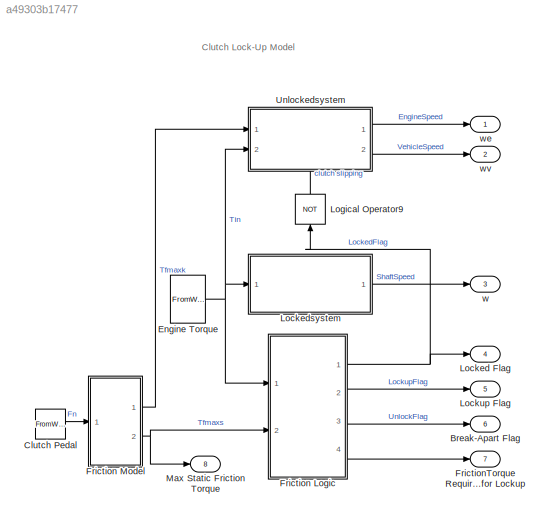
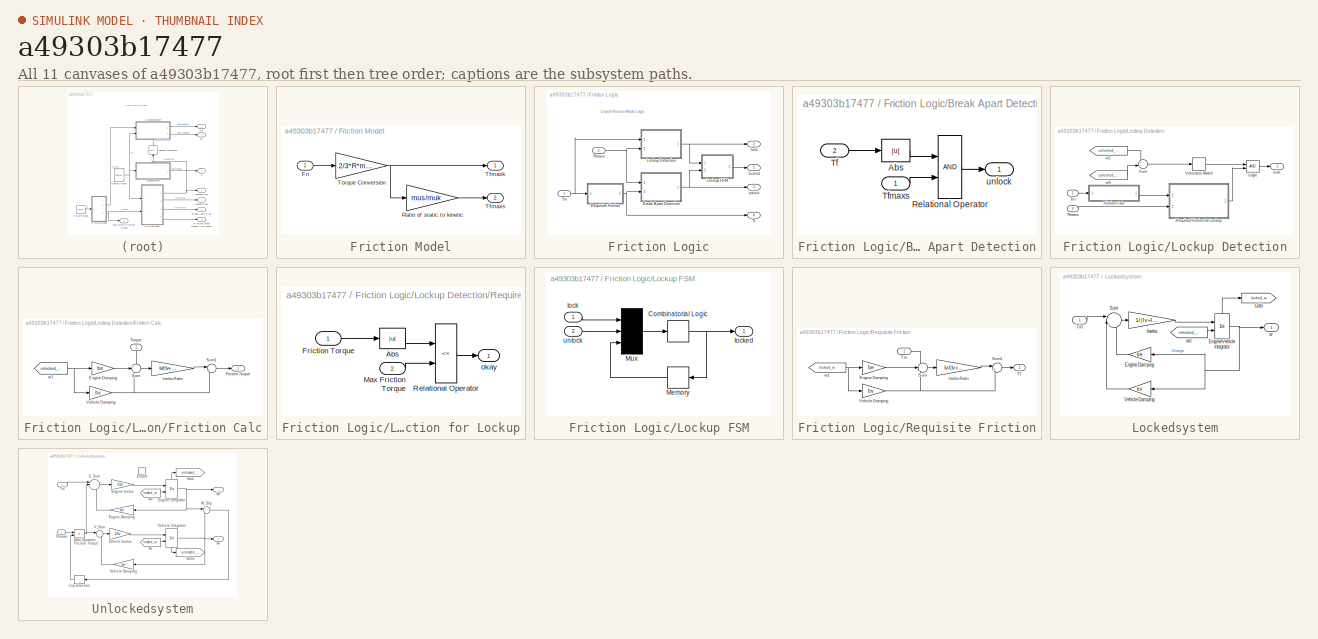
[diagram: thumbnail index - all 11 canvases of the model, root first then tree order]
MODEL slx_a49303b17477
KIND model
CONFIG AbsTol = auto
CONFIG EnableMultiTasking = off
CONFIG FixedStep = auto
CONFIG MaxStep = auto
CONFIG MinStep = auto
CONFIG RelTol = 1e-3
CONFIG SampleTimeConstraint = Unconstrained
CONFIG SolverName = VariableStepAuto
CONFIG StartTime = 0.0
CONFIG StopTime = 10.0
BLOCK [Outport] Break-Apart Flag
  InitialOutput = 0
  Port = 6
  VectorParamsAs1DForOutWhenUnconnected = off
BLOCK [FromWorkspace] Clutch Pedal
  VariableName = Fn
  ZeroCross = off
BLOCK [FromWorkspace] Engine Torque
  VariableName = Tin
  ZeroCross = off
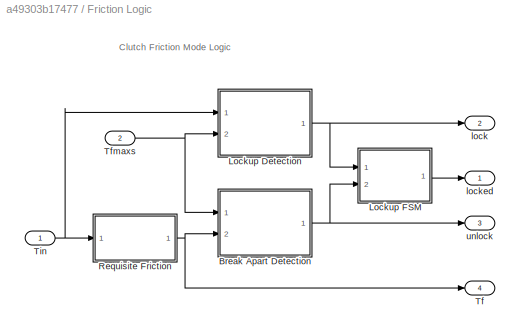
BLOCK [SubSystem] Friction Logic
  Ports = [2, 4]
  RequestExecContextInheritance = off
BLOCK [SubSystem] Friction Logic/Break Apart Detection
  Ports = [2, 1]
  RequestExecContextInheritance = off
BLOCK [Abs] Friction Logic/Break Apart Detection/Abs
BLOCK [RelationalOperator] Friction Logic/Break Apart Detection/Relational Operator
  OutDataTypeStr = boolean
  Ports = [2, 1]
BLOCK [Inport] Friction Logic/Break Apart Detection/Tf
  Port = 2
BLOCK [Inport] Friction Logic/Break Apart Detection/Tfmaxs
BLOCK [Outport] Friction Logic/Break Apart Detection/unlock
  InitialOutput = 0
  VectorParamsAs1DForOutWhenUnconnected = off
BLOCK [SubSystem] Friction Logic/Lockup Detection
  Ports = [2, 1]
  RequestExecContextInheritance = off
BLOCK [SubSystem] Friction Logic/Lockup Detection/Friction Calc
  Ports = [1, 1]
  RequestExecContextInheritance = off
BLOCK [Gain] Friction Logic/Lockup Detection/Friction Calc/Engine Damping
  Gain = be
  NameLocation = top
  OutDataTypeStr = Inherit: Same as input
  ParamDataTypeStr = Inherit: Same as input
  SaturateOnIntegerOverflow = on
BLOCK [Outport] Friction Logic/Lockup Detection/Friction Calc/Friction Torque
  InitialOutput = 0
  VectorParamsAs1DForOutWhenUnconnected = off
BLOCK [Gain] Friction Logic/Lockup Detection/Friction Calc/Inertia Ratio
  Gain = Iv/(Iv+Ie)
  OutDataTypeStr = Inherit: Same as input
  ParamDataTypeStr = Inherit: Same as input
  SaturateOnIntegerOverflow = on
BLOCK [Sum] Friction Logic/Lockup Detection/Friction Calc/Sum
  InputSameDT = on
  Inputs = +--
  OutDataTypeStr = Inherit: Same as first input
  Ports = [3, 1]
  SaturateOnIntegerOverflow = on
BLOCK [Sum] Friction Logic/Lockup Detection/Friction Calc/Sum1
  InputSameDT = on
  Inputs = |++
  OutDataTypeStr = Inherit: Same as first input
  Ports = [2, 1]
  SaturateOnIntegerOverflow = on
BLOCK [Inport] Friction Logic/Lockup Detection/Friction Calc/Torque
  NameLocation = left
BLOCK [Gain] Friction Logic/Lockup Detection/Friction Calc/Vehicle Damping
  Gain = bv
  OutDataTypeStr = Inherit: Same as input
  ParamDataTypeStr = Inherit: Same as input
  SaturateOnIntegerOverflow = on
BLOCK [From] Friction Logic/Lockup Detection/Friction Calc/w1
  GotoTag = unlocked_we
  TagVisibility = global
BLOCK [Logic] Friction Logic/Lockup Detection/Logic
  AttributesFormatString = (%<Operator>)
  IconShape = distinctive
  OutDataTypeStr = boolean
  Ports = [2, 1]
BLOCK [SubSystem] Friction Logic/Lockup Detection/Required Friction for Lockup
  Ports = [2, 1]
  RequestExecContextInheritance = off
BLOCK [Abs] Friction Logic/Lockup Detection/Required Friction for Lockup/Abs
BLOCK [Inport] Friction Logic/Lockup Detection/Required Friction for Lockup/Friction Torque
BLOCK [Inport] Friction Logic/Lockup Detection/Required Friction for Lockup/Max Friction Torque
  Port = 2
BLOCK [RelationalOperator] Friction Logic/Lockup Detection/Required Friction for Lockup/Relational Operator
  Operator = <=
  OutDataTypeStr = boolean
  Ports = [2, 1]
BLOCK [Outport] Friction Logic/Lockup Detection/Required Friction for Lockup/okay
  InitialOutput = 0
  VectorParamsAs1DForOutWhenUnconnected = off
BLOCK [Sum] Friction Logic/Lockup Detection/Sum
  InputSameDT = on
  Inputs = +-
  OutDataTypeStr = Inherit: Same as first input
  Ports = [2, 1]
  SaturateOnIntegerOverflow = on
BLOCK [Inport] Friction Logic/Lockup Detection/Tfmaxs
  Port = 2
BLOCK [Inport] Friction Logic/Lockup Detection/Tin
BLOCK [HitCross] Friction Logic/Lockup Detection/Velocities Match
  Ports = [1, 1]
BLOCK [Outport] Friction Logic/Lockup Detection/lock
  InitialOutput = 0
  VectorParamsAs1DForOutWhenUnconnected = off
BLOCK [From] Friction Logic/Lockup Detection/w1
  GotoTag = unlocked_we
  TagVisibility = global
BLOCK [From] Friction Logic/Lockup Detection/w6
  GotoTag = unlocked_wv
  TagVisibility = global
BLOCK [SubSystem] Friction Logic/Lockup FSM
  Ports = [2, 1]
  RequestExecContextInheritance = off
BLOCK [CombinatorialLogic] Friction Logic/Lockup FSM/Combinatorial Logic
  TruthTable = [0;1;0;0;1;1;1;0]
BLOCK [Memory] Friction Logic/Lockup FSM/Memory
BLOCK [Mux] Friction Logic/Lockup FSM/Mux
  Inputs = 3
  Ports = [3, 1]
BLOCK [Inport] Friction Logic/Lockup FSM/lock
  NameLocation = top
BLOCK [Outport] Friction Logic/Lockup FSM/locked
  InitialOutput = 0
  VectorParamsAs1DForOutWhenUnconnected = off
BLOCK [Inport] Friction Logic/Lockup FSM/unlock
  Port = 2
BLOCK [SubSystem] Friction Logic/Requisite Friction
  Ports = [1, 1]
  RequestExecContextInheritance = off
BLOCK [Gain] Friction Logic/Requisite Friction/Engine Damping
  Gain = be
  NameLocation = top
  OutDataTypeStr = Inherit: Same as input
  ParamDataTypeStr = Inherit: Same as input
  SaturateOnIntegerOverflow = on
BLOCK [Gain] Friction Logic/Requisite Friction/Inertia Ratio
  Gain = Iv/(Iv+Ie)
  OutDataTypeStr = Inherit: Same as input
  ParamDataTypeStr = Inherit: Same as input
  SaturateOnIntegerOverflow = on
BLOCK [Sum] Friction Logic/Requisite Friction/Sum
  InputSameDT = on
  Inputs = +--
  OutDataTypeStr = Inherit: Same as first input
  Ports = [3, 1]
  SaturateOnIntegerOverflow = on
BLOCK [Sum] Friction Logic/Requisite Friction/Sum1
  InputSameDT = on
  Inputs = |++
  OutDataTypeStr = Inherit: Same as first input
  Ports = [2, 1]
  SaturateOnIntegerOverflow = on
BLOCK [Outport] Friction Logic/Requisite Friction/Tf
  InitialOutput = 0
  VectorParamsAs1DForOutWhenUnconnected = off
BLOCK [Inport] Friction Logic/Requisite Friction/Tin
BLOCK [Gain] Friction Logic/Requisite Friction/Vehicle Damping
  Gain = bv
  OutDataTypeStr = Inherit: Same as input
  ParamDataTypeStr = Inherit: Same as input
  SaturateOnIntegerOverflow = on
BLOCK [From] Friction Logic/Requisite Friction/w1
  GotoTag = locked_w
  NameLocation = top
  TagVisibility = global
BLOCK [Outport] Friction Logic/Tf
  InitialOutput = 0
  Port = 4
  VectorParamsAs1DForOutWhenUnconnected = off
BLOCK [Inport] Friction Logic/Tfmaxs
  Port = 2
BLOCK [Inport] Friction Logic/Tin
BLOCK [Outport] Friction Logic/lock
  InitialOutput = 0
  Port = 2
  VectorParamsAs1DForOutWhenUnconnected = off
BLOCK [Outport] Friction Logic/locked
  InitialOutput = 0
  VectorParamsAs1DForOutWhenUnconnected = off
BLOCK [Outport] Friction Logic/unlock
  InitialOutput = 0
  Port = 3
  VectorParamsAs1DForOutWhenUnconnected = off
BLOCK [SubSystem] Friction Model
  Ports = [1, 2]
  RequestExecContextInheritance = off
BLOCK [Inport] Friction Model/Fn
BLOCK [Gain] Friction Model/Ratio of static to kinetic
  Gain = mus/muk
  OutDataTypeStr = Inherit: Same as input
  ParamDataTypeStr = Inherit: Same as input
  SaturateOnIntegerOverflow = on
BLOCK [Outport] Friction Model/Tfmaxk
  InitialOutput = 0
  VectorParamsAs1DForOutWhenUnconnected = off
BLOCK [Outport] Friction Model/Tfmaxs
  InitialOutput = 0
  Port = 2
  VectorParamsAs1DForOutWhenUnconnected = off
BLOCK [Gain] Friction Model/Torque Conversion
  Gain = 2/3*R*muk
  OutDataTypeStr = Inherit: Same as input
  ParamDataTypeStr = Inherit: Same as input
  SaturateOnIntegerOverflow = on
BLOCK [Outport] FrictionTorque Required for Lockup
  InitialOutput = 0
  Port = 7
  VectorParamsAs1DForOutWhenUnconnected = off
BLOCK [Outport] Locked Flag
  InitialOutput = 0
  Port = 4
  VectorParamsAs1DForOutWhenUnconnected = off
BLOCK [SubSystem] Lockedsystem
  Ports = [1, 1]
  RequestExecContextInheritance = off
  TreatAsAtomicUnit = on
BLOCK [Gain] Lockedsystem/Engine Damping
  Gain = be
  OutDataTypeStr = Inherit: Same as input
  ParamDataTypeStr = Inherit: Same as input
  SaturateOnIntegerOverflow = on
BLOCK [Integrator] Lockedsystem/Engine//Vehicle Integrator
  InitialConditionSource = external
  Ports = [2, 1, 0, 0, 1]
  ShowStatePort = on
BLOCK [Goto] Lockedsystem/Goto
  GotoTag = locked_w
  NameLocation = top
  TagVisibility = global
BLOCK [Gain] Lockedsystem/Inertia
  Gain = 1/(Iv+Ie)
  OutDataTypeStr = Inherit: Same as input
  ParamDataTypeStr = Inherit: Same as input
  SaturateOnIntegerOverflow = on
BLOCK [Sum] Lockedsystem/Sum
  InputSameDT = on
  Inputs = ||+--
  OutDataTypeStr = Inherit: Same as first input
  Ports = [3, 1]
  SaturateOnIntegerOverflow = on
BLOCK [Inport] Lockedsystem/Tin
BLOCK [Gain] Lockedsystem/Vehicle Damping
  Gain = bv
  OutDataTypeStr = Inherit: Same as input
  ParamDataTypeStr = Inherit: Same as input
  SaturateOnIntegerOverflow = on
BLOCK [Outport] Lockedsystem/w
  InitialOutput = 0
  VectorParamsAs1DForOutWhenUnconnected = off
BLOCK [From] Lockedsystem/w0
  GotoTag = unlocked_we
  TagVisibility = global
BLOCK [Outport] Lockup Flag
  InitialOutput = 0
  Port = 5
  VectorParamsAs1DForOutWhenUnconnected = off
BLOCK [Logic] Logical Operator9
  IconShape = distinctive
  Inputs = 1
  NameLocation = left
  Operator = NOT
  OutDataTypeStr = boolean
  Ports = [1, 1]
BLOCK [Outport] Max Static Friction Torque
  InitialOutput = 0
  Port = 8
  VectorParamsAs1DForOutWhenUnconnected = off
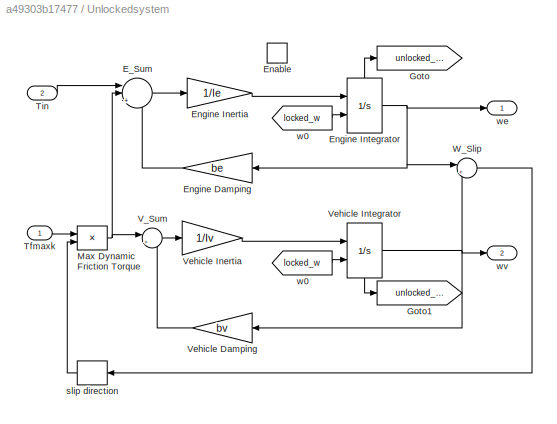
BLOCK [SubSystem] Unlockedsystem
  NameLocation = top
  Ports = [2, 2, 1]
  RequestExecContextInheritance = off
  TreatAsAtomicUnit = on
BLOCK [Sum] Unlockedsystem/E_Sum
  InputSameDT = on
  Inputs = ||+--
  NameLocation = top
  OutDataTypeStr = Inherit: Same as first input
  Ports = [3, 1]
  SaturateOnIntegerOverflow = on
BLOCK [EnablePort] Unlockedsystem/Enable
  Ports = []
  StatesWhenEnabling = reset
BLOCK [Gain] Unlockedsystem/Engine Damping
  Gain = be
  OutDataTypeStr = Inherit: Same as input
  ParamDataTypeStr = Inherit: Same as input
  SaturateOnIntegerOverflow = on
BLOCK [Gain] Unlockedsystem/Engine Inertia
  Gain = 1/Ie
  OutDataTypeStr = Inherit: Same as input
  ParamDataTypeStr = Inherit: Same as input
  SaturateOnIntegerOverflow = on
BLOCK [Integrator] Unlockedsystem/Engine Integrator
  InitialConditionSource = external
  Ports = [2, 1, 0, 0, 1]
  ShowStatePort = on
BLOCK [Goto] Unlockedsystem/Goto
  GotoTag = unlocked_we
  TagVisibility = global
BLOCK [Goto] Unlockedsystem/Goto1
  GotoTag = unlocked_wv
  TagVisibility = global
BLOCK [Product] Unlockedsystem/Max Dynamic Friction Torque
  InputSameDT = on
  OutDataTypeStr = Inherit: Same as first input
  Ports = [2, 1]
  RndMeth = Zero
  SaturateOnIntegerOverflow = on
BLOCK [Inport] Unlockedsystem/Tfmaxk
BLOCK [Inport] Unlockedsystem/Tin
  Port = 2
BLOCK [Sum] Unlockedsystem/V_Sum
  InputSameDT = on
  Inputs = |+-
  NameLocation = top
  OutDataTypeStr = Inherit: Same as first input
  Ports = [2, 1]
  SaturateOnIntegerOverflow = on
BLOCK [Gain] Unlockedsystem/Vehicle Damping
  Gain = bv
  OutDataTypeStr = Inherit: Same as input
  ParamDataTypeStr = Inherit: Same as input
  SaturateOnIntegerOverflow = on
BLOCK [Gain] Unlockedsystem/Vehicle Inertia
  Gain = 1/Iv
  OutDataTypeStr = Inherit: Same as input
  ParamDataTypeStr = Inherit: Same as input
  SaturateOnIntegerOverflow = on
BLOCK [Integrator] Unlockedsystem/Vehicle Integrator
  InitialConditionSource = external
  NameLocation = top
  Ports = [2, 1, 0, 0, 1]
  ShowStatePort = on
BLOCK [Sum] Unlockedsystem/W_Slip
  InputSameDT = on
  Inputs = |+-
  NameLocation = top
  OutDataTypeStr = Inherit: Same as first input
  Ports = [2, 1]
  SaturateOnIntegerOverflow = on
BLOCK [Signum] Unlockedsystem/slip direction
BLOCK [From] Unlockedsystem/w0
  GotoTag = locked_w
  TagVisibility = global
BLOCK [From] Unlockedsystem/w0 
  GotoTag = locked_w
  TagVisibility = global
BLOCK [Outport] Unlockedsystem/we
  InitialOutput = 0
  VectorParamsAs1DForOutWhenUnconnected = off
BLOCK [Outport] Unlockedsystem/wv
  InitialOutput = 0
  Port = 2
  VectorParamsAs1DForOutWhenUnconnected = off
BLOCK [Outport] w
  InitialOutput = 0
  Port = 3
  VectorParamsAs1DForOutWhenUnconnected = off
BLOCK [Outport] we
  InitialOutput = 0
  VectorParamsAs1DForOutWhenUnconnected = off
BLOCK [Outport] wv
  InitialOutput = 0
  Port = 2
  VectorParamsAs1DForOutWhenUnconnected = off
ANNOTATION (root): Clutch Lock-Up Model
ANNOTATION Friction Logic: Clutch Friction Mode Logic
LINE Clutch Pedal:1 -> Friction Model:1
NET Engine Torque:1 -> Friction Logic:1, Lockedsystem:1, Unlockedsystem:2
LINE Friction Logic/Break Apart Detection/Abs:1 -> Friction Logic/Break Apart Detection/Relational Operator:1
LINE Friction Logic/Break Apart Detection/Relational Operator:1 -> Friction Logic/Break Apart Detection/unlock:1
LINE Friction Logic/Break Apart Detection/Tf:1 -> Friction Logic/Break Apart Detection/Abs:1
LINE Friction Logic/Break Apart Detection/Tfmaxs:1 -> Friction Logic/Break Apart Detection/Relational Operator:2
NET Friction Logic/Break Apart Detection:1 -> Friction Logic/Lockup FSM:2, Friction Logic/unlock:1
LINE Friction Logic/Lockup Detection/Friction Calc/Engine Damping:1 -> Friction Logic/Lockup Detection/Friction Calc/Sum:2
LINE Friction Logic/Lockup Detection/Friction Calc/Inertia Ratio:1 -> Friction Logic/Lockup Detection/Friction Calc/Sum1:1
LINE Friction Logic/Lockup Detection/Friction Calc/Sum1:1 -> Friction Logic/Lockup Detection/Friction Calc/Friction Torque:1
LINE Friction Logic/Lockup Detection/Friction Calc/Sum:1 -> Friction Logic/Lockup Detection/Friction Calc/Inertia Ratio:1
LINE Friction Logic/Lockup Detection/Friction Calc/Torque:1 -> Friction Logic/Lockup Detection/Friction Calc/Sum:1
NET Friction Logic/Lockup Detection/Friction Calc/Vehicle Damping:1 -> Friction Logic/Lockup Detection/Friction Calc/Sum1:2, Friction Logic/Lockup Detection/Friction Calc/Sum:3
NET Friction Logic/Lockup Detection/Friction Calc/w1:1 -> Friction Logic/Lockup Detection/Friction Calc/Engine Damping:1, Friction Logic/Lockup Detection/Friction Calc/Vehicle Damping:1
LINE Friction Logic/Lockup Detection/Friction Calc:1 -> Friction Logic/Lockup Detection/Required Friction for Lockup:1
LINE Friction Logic/Lockup Detection/Logic:1 -> Friction Logic/Lockup Detection/lock:1
LINE Friction Logic/Lockup Detection/Required Friction for Lockup/Abs:1 -> Friction Logic/Lockup Detection/Required Friction for Lockup/Relational Operator:1
LINE Friction Logic/Lockup Detection/Required Friction for Lockup/Friction Torque:1 -> Friction Logic/Lockup Detection/Required Friction for Lockup/Abs:1
LINE Friction Logic/Lockup Detection/Required Friction for Lockup/Max Friction Torque:1 -> Friction Logic/Lockup Detection/Required Friction for Lockup/Relational Operator:2
LINE Friction Logic/Lockup Detection/Required Friction for Lockup/Relational Operator:1 -> Friction Logic/Lockup Detection/Required Friction for Lockup/okay:1
LINE Friction Logic/Lockup Detection/Required Friction for Lockup:1 -> Friction Logic/Lockup Detection/Logic:2
LINE Friction Logic/Lockup Detection/Sum:1 -> Friction Logic/Lockup Detection/Velocities Match:1
LINE Friction Logic/Lockup Detection/Tfmaxs:1 -> Friction Logic/Lockup Detection/Required Friction for Lockup:2
LINE Friction Logic/Lockup Detection/Tin:1 -> Friction Logic/Lockup Detection/Friction Calc:1
LINE Friction Logic/Lockup Detection/Velocities Match:1 -> Friction Logic/Lockup Detection/Logic:1
LINE Friction Logic/Lockup Detection/w1:1 -> Friction Logic/Lockup Detection/Sum:1
LINE Friction Logic/Lockup Detection/w6:1 -> Friction Logic/Lockup Detection/Sum:2
NET Friction Logic/Lockup Detection:1 -> Friction Logic/Lockup FSM:1, Friction Logic/lock:1
NET Friction Logic/Lockup FSM/Combinatorial Logic:1 -> Friction Logic/Lockup FSM/Memory:1, Friction Logic/Lockup FSM/locked:1
LINE Friction Logic/Lockup FSM/Memory:1 -> Friction Logic/Lockup FSM/Mux:3
LINE Friction Logic/Lockup FSM/Mux:1 -> Friction Logic/Lockup FSM/Combinatorial Logic:1
LINE Friction Logic/Lockup FSM/lock:1 -> Friction Logic/Lockup FSM/Mux:1
LINE Friction Logic/Lockup FSM/unlock:1 -> Friction Logic/Lockup FSM/Mux:2
LINE Friction Logic/Lockup FSM:1 -> Friction Logic/locked:1
LINE Friction Logic/Requisite Friction/Engine Damping:1 -> Friction Logic/Requisite Friction/Sum:2
LINE Friction Logic/Requisite Friction/Inertia Ratio:1 -> Friction Logic/Requisite Friction/Sum1:1
LINE Friction Logic/Requisite Friction/Sum1:1 -> Friction Logic/Requisite Friction/Tf:1
LINE Friction Logic/Requisite Friction/Sum:1 -> Friction Logic/Requisite Friction/Inertia Ratio:1
LINE Friction Logic/Requisite Friction/Tin:1 -> Friction Logic/Requisite Friction/Sum:1
NET Friction Logic/Requisite Friction/Vehicle Damping:1 -> Friction Logic/Requisite Friction/Sum1:2, Friction Logic/Requisite Friction/Sum:3
NET Friction Logic/Requisite Friction/w1:1 -> Friction Logic/Requisite Friction/Engine Damping:1, Friction Logic/Requisite Friction/Vehicle Damping:1
NET Friction Logic/Requisite Friction:1 -> Friction Logic/Break Apart Detection:2, Friction Logic/Tf:1
NET Friction Logic/Tfmaxs:1 -> Friction Logic/Break Apart Detection:1, Friction Logic/Lockup Detection:2
NET Friction Logic/Tin:1 -> Friction Logic/Lockup Detection:1, Friction Logic/Requisite Friction:1
NET Friction Logic:1 -> Locked Flag:1, Logical Operator9:1
LINE Friction Logic:2 -> Lockup Flag:1
LINE Friction Logic:3 -> Break-Apart Flag:1
LINE Friction Logic:4 -> FrictionTorque Required for Lockup:1
LINE Friction Model/Fn:1 -> Friction Model/Torque Conversion:1
LINE Friction Model/Ratio of static to kinetic:1 -> Friction Model/Tfmaxs:1
NET Friction Model/Torque Conversion:1 -> Friction Model/Ratio of static to kinetic:1, Friction Model/Tfmaxk:1
LINE Friction Model:1 -> Unlockedsystem:1
NET Friction Model:2 -> Friction Logic:2, Max Static Friction Torque:1
LINE Lockedsystem/Engine Damping:1 -> Lockedsystem/Sum:3
NET Lockedsystem/Engine//Vehicle Integrator:1 -> Lockedsystem/Engine Damping:1, Lockedsystem/Vehicle Damping:1, Lockedsystem/w:1
LINE Lockedsystem/Engine//Vehicle Integrator:state -> Lockedsystem/Goto:1
LINE Lockedsystem/Inertia:1 -> Lockedsystem/Engine//Vehicle Integrator:1
LINE Lockedsystem/Sum:1 -> Lockedsystem/Inertia:1
LINE Lockedsystem/Tin:1 -> Lockedsystem/Sum:1
LINE Lockedsystem/Vehicle Damping:1 -> Lockedsystem/Sum:2
LINE Lockedsystem/w0:1 -> Lockedsystem/Engine//Vehicle Integrator:2
LINE Lockedsystem:1 -> w:1
LINE Logical Operator9:1 -> Unlockedsystem:enable
LINE Unlockedsystem/E_Sum:1 -> Unlockedsystem/Engine Inertia:1
LINE Unlockedsystem/Engine Damping:1 -> Unlockedsystem/E_Sum:3
LINE Unlockedsystem/Engine Inertia:1 -> Unlockedsystem/Engine Integrator:1
NET Unlockedsystem/Engine Integrator:1 -> Unlockedsystem/Engine Damping:1, Unlockedsystem/W_Slip:1, Unlockedsystem/we:1
LINE Unlockedsystem/Engine Integrator:state -> Unlockedsystem/Goto:1
NET Unlockedsystem/Max Dynamic Friction Torque:1 -> Unlockedsystem/E_Sum:2, Unlockedsystem/V_Sum:1
LINE Unlockedsystem/Tfmaxk:1 -> Unlockedsystem/Max Dynamic Friction Torque:1
LINE Unlockedsystem/Tin:1 -> Unlockedsystem/E_Sum:1
LINE Unlockedsystem/V_Sum:1 -> Unlockedsystem/Vehicle Inertia:1
LINE Unlockedsystem/Vehicle Damping:1 -> Unlockedsystem/V_Sum:2
LINE Unlockedsystem/Vehicle Inertia:1 -> Unlockedsystem/Vehicle Integrator:1
NET Unlockedsystem/Vehicle Integrator:1 -> Unlockedsystem/Vehicle Damping:1, Unlockedsystem/W_Slip:2, Unlockedsystem/wv:1
LINE Unlockedsystem/Vehicle Integrator:state -> Unlockedsystem/Goto1:1
LINE Unlockedsystem/W_Slip:1 -> Unlockedsystem/slip direction:1
LINE Unlockedsystem/slip direction:1 -> Unlockedsystem/Max Dynamic Friction Torque:2
LINE Unlockedsystem/w0 :1 -> Unlockedsystem/Engine Integrator:2
LINE Unlockedsystem/w0:1 -> Unlockedsystem/Vehicle Integrator:2
LINE Unlockedsystem:1 -> we:1
LINE Unlockedsystem:2 -> wv:1
note: NET lines group one-source signal fan-out (src -> all destinations, sorted); 1:1 wires keep LINE
